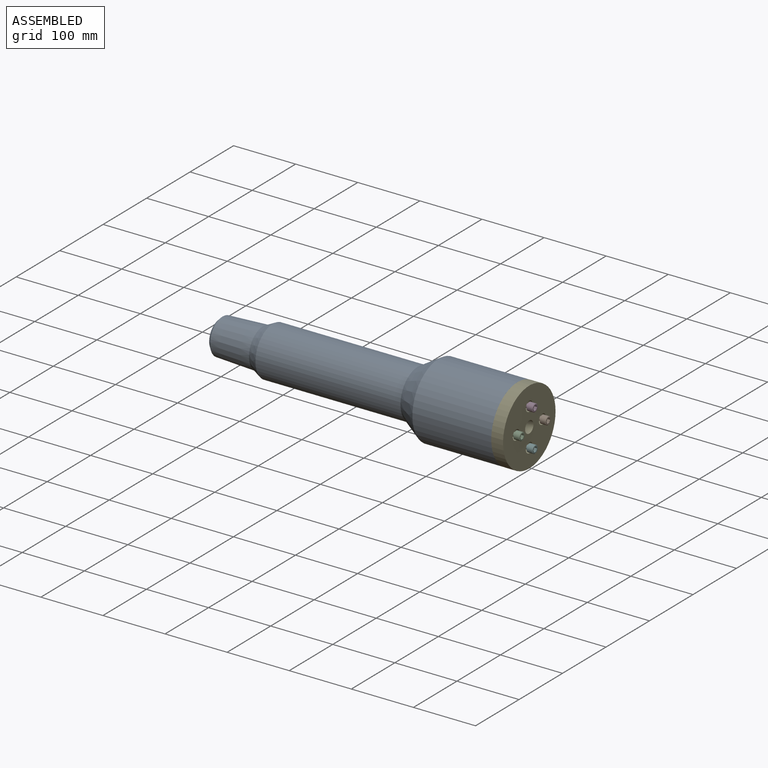
[diagram: assembled view]
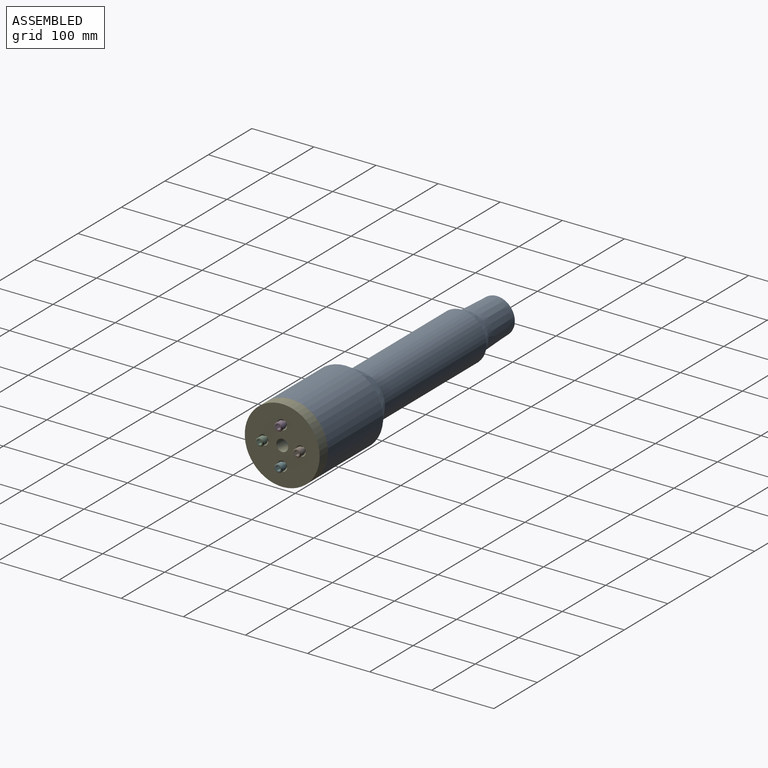
[diagram: assembled view, second angle]
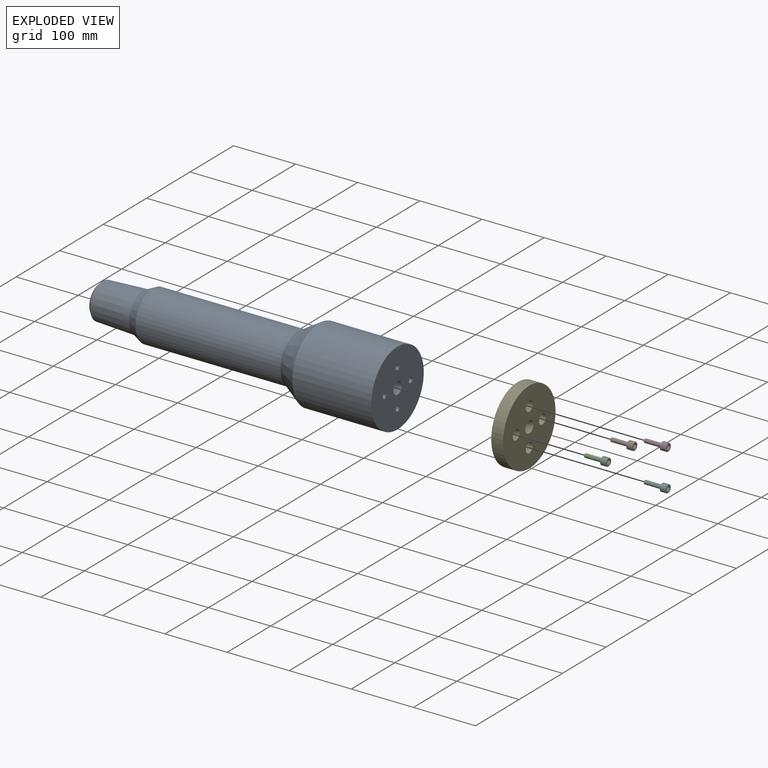
[diagram: exploded view]
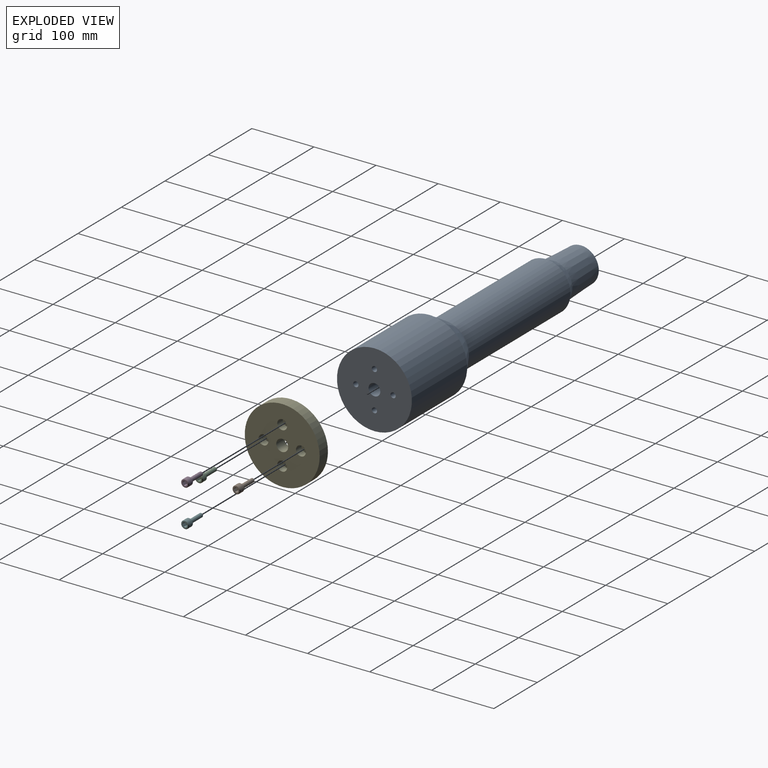
[diagram: exploded view, second angle]
ASSEMBLY  parts=6 mates=5
PART A: 18 faces, bbox 479.9x120.7x120.7 mm
  f0: plane 120.65x120.65mm, normal (1,0,0), area 10924.2mm2, adj f1,f7,f11,f13,f15,f17
  f1: cylinder r=60.32mm len=127mm, axis (1,0,0), area 48137.2mm2, adj f0,f2
  f2: cone r=39.69mm half-angle=31.6deg, axis (1,0,0), area 12388.8mm2, adj f1,f3
  f3: cylinder r=39.69mm len=233.51mm, axis (1,0,0), area 58227.8mm2, adj f2,f4
  f4: cone r=31.75mm half-angle=26.4deg, axis (1,0,0), area 4001.7mm2, adj f3,f5
  f5: cone r=28.57mm half-angle=2.6deg, axis (1,0,0), area 12335.6mm2, adj f4,f9
  f6: plane 46.99x46.99mm, normal (-1,0,0), area 1042.2mm2, adj f8,f9
  f7: cylinder r=9.53mm len=474.6mm, axis (1,0,0), area 28403.8mm2, adj f0,f8
  f8: cone r=14.84mm half-angle=45deg, axis (-1,0,0), area 575.5mm2, adj f6,f7
  f9: cone r=28.81mm half-angle=46.3deg, axis (1,0,0), area 1206.9mm2, adj f5,f6
  f10: cone r=0mm half-angle=59deg, axis (1,0,0), area 65.2mm2, adj f11
  f11: cylinder r=4.22mm len=38.1mm, axis (1,0,0), area 1009.4mm2, adj f0,f10
  f12: cone r=0mm half-angle=59deg, axis (1,0,0), area 65.2mm2, adj f13
  f13: cylinder r=4.22mm len=38.1mm, axis (1,0,0), area 1009.4mm2, adj f0,f12
  f14: cone r=0mm half-angle=59deg, axis (1,0,0), area 65.2mm2, adj f15
  f15: cylinder r=4.22mm len=38.1mm, axis (1,0,0), area 1009.4mm2, adj f0,f14
  f16: cone r=0mm half-angle=59deg, axis (1,0,0), area 65.2mm2, adj f17
  f17: cylinder r=4.22mm len=38.1mm, axis (1,0,0), area 1009.4mm2, adj f0,f16
PART B: 14 faces, bbox 12.7x38.1x12.7 mm
  f0: plane 11.18x11.18mm, normal (0,-1,0), area 53.8mm2, adj f3,f4,f5,f6,f7,f8,f12
  f1: cylinder r=6.35mm len=12.7mm, axis (0,1,0), area 349.6mm2, adj f2,f12
  f2: plane 12.7x12.7mm, normal (0,1,0), area 95mm2, adj f1,f10
  f3: plane 6.35x3.57mm, normal (0.87,0,-0.5), area 26.2mm2, adj f0,f4,f8,f9
  f4: plane 6.35x3.57mm, normal (0.87,0,0.5), area 26.2mm2, adj f0,f3,f5,f9
  f5: plane 6.35x4.13mm, normal (0,0,1), area 26.2mm2, adj f0,f4,f6,f9
  f6: plane 6.35x3.57mm, normal (-0.87,0,0.5), area 26.2mm2, adj f0,f5,f7,f9
  f7: plane 6.35x3.57mm, normal (-0.87,0,-0.5), area 26.2mm2, adj f0,f6,f8,f9
  f8: plane 6.35x4.13mm, normal (0,0,-1), area 26.2mm2, adj f0,f3,f7,f9
  f9: plane 8.26x7.15mm, normal (0,-1,0), area 44.3mm2, adj f3,f4,f5,f6,f7,f8
  f10: cylinder r=3.17mm len=27.81mm, axis (0,-1,0), area 554.8mm2, adj f2,f13
  f11: plane 4.83x4.83mm, normal (0,1,0), area 18.3mm2, adj f13
  f12: cone r=5.59mm half-angle=45deg, axis (0,1,0), area 40.4mm2, adj f0,f1
  f13: cone r=2.41mm half-angle=45deg, axis (0,-1,0), area 18.9mm2, adj f10,f11
PART C: same geometry as B
PART D: same geometry as B
PART E: 16 faces, bbox 120.7x19.1x120.7 mm
  f0: cylinder r=60.32mm len=120.65mm, axis (0,-1,0), area 7220.6mm2, adj f1,f2
  f1: plane 120.65x120.65mm, normal (0,1,0), area 10355.8mm2, adj f0,f5,f8,f11,f14,f15
  f2: plane 120.65x120.65mm, normal (0,-1,0), area 10924.2mm2, adj f0,f3,f6,f9,f12,f15
  f3: cylinder r=4.22mm len=8.43mm, axis (0,1,0), area 168.2mm2, adj f2,f4
  f4: plane 15.88x15.88mm, normal (0,1,0), area 142.1mm2, adj f3,f5
  f5: cylinder r=7.94mm len=15.88mm, axis (0,1,0), area 633.4mm2, adj f1,f4
  f6: cylinder r=4.22mm len=8.43mm, axis (0,1,0), area 168.2mm2, adj f2,f7
  f7: plane 15.88x15.88mm, normal (0,1,0), area 142.1mm2, adj f6,f8
  f8: cylinder r=7.94mm len=15.88mm, axis (0,1,0), area 633.4mm2, adj f1,f7
  f9: cylinder r=4.22mm len=8.43mm, axis (0,1,0), area 168.2mm2, adj f2,f10
  f10: plane 15.88x15.88mm, normal (0,1,0), area 142.1mm2, adj f9,f11
  f11: cylinder r=7.94mm len=15.88mm, axis (0,1,0), area 633.4mm2, adj f1,f10
  f12: cylinder r=4.22mm len=8.43mm, axis (0,1,0), area 168.2mm2, adj f2,f13
  f13: plane 15.88x15.88mm, normal (0,1,0), area 142.1mm2, adj f12,f14
  f14: cylinder r=7.94mm len=15.88mm, axis (0,1,0), area 633.4mm2, adj f1,f13
  f15: cylinder r=9.53mm len=19.05mm, axis (0,1,0), area 1140.1mm2, adj f1,f2
PART F: same geometry as B
PLACE A t=(-162.37,-115.66,44.41)mm
PLACE B rot(axis=(0,0,1),90deg) t=(7.4,-85.51,44.41)mm
PLACE C rot(axis=(0,0,1),90deg) t=(7.4,-145.81,44.41)mm
PLACE D rot(axis=(0,0,1),90deg) t=(7.4,-115.66,74.56)mm
PLACE E rot(axis=(0.58,0.58,-0.58),120deg) t=(-11.65,-115.66,44.41)mm
PLACE F rot(axis=(0,0,1),90deg) t=(7.4,-115.66,14.26)mm
MATE fastened C.f10 <-> E.f3  axis (1,0,0) through (7.4,-145.81,44.41)mm
MATE fastened B.f10 <-> E.f9  axis (1,0,0) through (7.4,-85.51,44.41)mm
MATE fastened F.f10 <-> E.f12  axis (1,0,0) through (7.4,-115.66,14.26)mm
MATE fastened D.f10 <-> E.f6  axis (1,0,0) through (7.4,-115.66,74.56)mm
MATE cylindrical E.f0 <-> A.f1  axis (-1,0,0) through (-11.65,-115.66,44.41)mm
